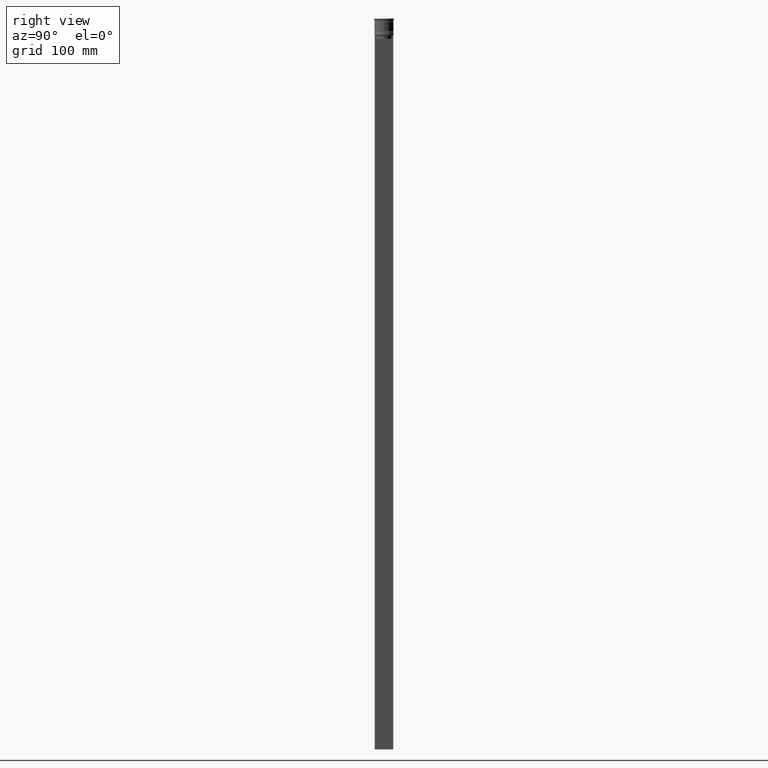
[diagram: clean part render]
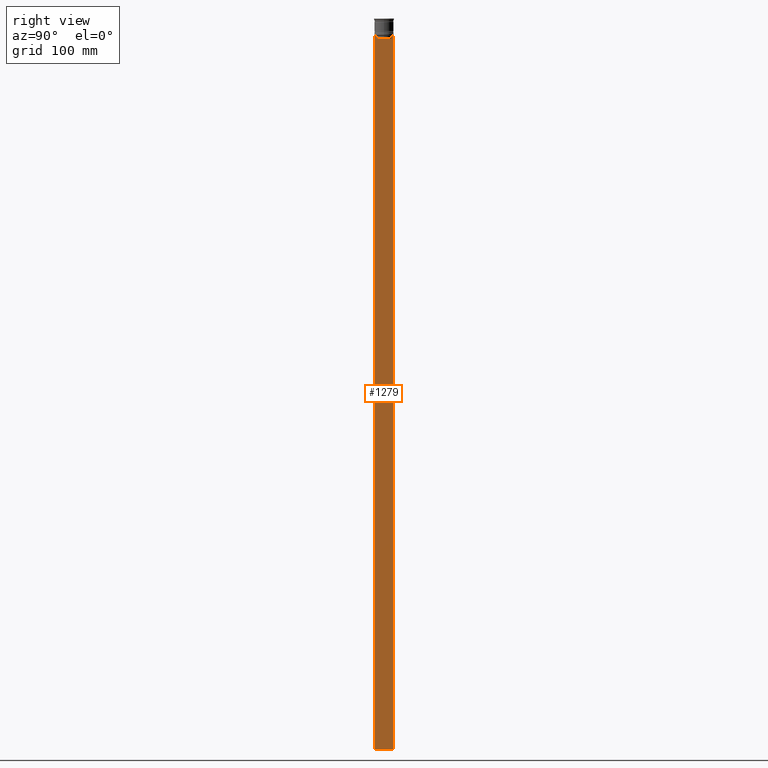
[diagram: same view with one face highlighted and labeled with its STEP entity id]
A machine part, right view. The second image highlights one B-rep face of the part: STEP entity #1279.
In plain terms, the highlighted planar face has unit normal (-1, 0, 0).
Its self-contained STEP definition (entity closure, byte-faithful):
#64 = DIRECTION ( 'NONE',  ( -0.000000000000000000, -0.000000000000000000, 1.000000000000000000 ) ) ;
#91 = VECTOR ( 'NONE', #1791, 1000.000000000000000 ) ;
#103 = CARTESIAN_POINT ( 'NONE',  ( 0.5000000000000001110, -6.380438856379708312, -17.00000000000000000 ) ) ;
#106 = VERTEX_POINT ( 'NONE', #1213 ) ;
#110 = CARTESIAN_POINT ( 'NONE',  ( 0.5000000000000001110, -7.749999999999999112, -14.00000000000000178 ) ) ;
#118 = LINE ( 'NONE', #1969, #2388 ) ;
#124 = EDGE_CURVE ( 'NONE', #2125, #307, #1019, .T. ) ;
#128 = ORIENTED_EDGE ( 'NONE', *, *, #1764, .T. ) ;
#199 = VECTOR ( 'NONE', #2129, 1000.000000000000000 ) ;
#236 = EDGE_CURVE ( 'NONE', #2189, #2233, #967, .T. ) ;
#239 = VERTEX_POINT ( 'NONE', #1712 ) ;
#307 = VERTEX_POINT ( 'NONE', #2237 ) ;
#325 = LINE ( 'NONE', #2380, #91 ) ;
#470 = CARTESIAN_POINT ( 'NONE',  ( 0.5000000000000001110, -7.749999999999999112, -614.0000000000000000 ) ) ;
#485 = EDGE_CURVE ( 'NONE', #307, #106, #1570, .T. ) ;
#515 = CARTESIAN_POINT ( 'NONE',  ( 0.5000000000000001110, -6.881860213634098500, -14.00000000000000178 ) ) ;
#517 = LINE ( 'NONE', #1239, #2384 ) ;
#520 = LINE ( 'NONE', #1702, #1526 ) ;
#533 = VERTEX_POINT ( 'NONE', #987 ) ;
#534 = CARTESIAN_POINT ( 'NONE',  ( 0.5000000000000001110, -6.714736947305993908, -14.16668390685738821 ) ) ;
#548 = ORIENTED_EDGE ( 'NONE', *, *, #124, .T. ) ;
#550 = VECTOR ( 'NONE', #1064, 1000.000000000000000 ) ;
#598 = CARTESIAN_POINT ( 'NONE',  ( 0.5000000000000001110, -7.749999999999999112, 1.532224567009066840 ) ) ;
#603 = CARTESIAN_POINT ( 'NONE',  ( 0.5000000000000001110, 6.380438856379708312, -17.00000000000000000 ) ) ;
#632 = AXIS2_PLACEMENT_3D ( 'NONE', #598, #2049, #1111 ) ;
#673 = LINE ( 'NONE', #470, #550 ) ;
#704 = CARTESIAN_POINT ( 'NONE',  ( 0.5000000000000001110, -6.380438856379708312, -14.50000000000000000 ) ) ;
#716 = ORIENTED_EDGE ( 'NONE', *, *, #1718, .T. ) ;
#718 = VECTOR ( 'NONE', #1740, 1000.000000000000000 ) ;
#808 = CARTESIAN_POINT ( 'NONE',  ( 0.5000000000000001110, -6.881860213634098500, -14.00000000000000178 ) ) ;
#850 = EDGE_CURVE ( 'NONE', #2125, #864, #325, .T. ) ;
#864 = VERTEX_POINT ( 'NONE', #1653 ) ;
#899 = EDGE_CURVE ( 'NONE', #1597, #533, #517, .T. ) ;
#944 = ORIENTED_EDGE ( 'NONE', *, *, #485, .T. ) ;
#952 = B_SPLINE_CURVE_WITH_KNOTS ( 'NONE', 3,
 ( #1631, #2184, #534, #515 ),
 .UNSPECIFIED., .F., .F.,
 ( 4, 4 ),
 ( 0.02996184199614751464, 0.03067452609193705923 ),
 .UNSPECIFIED. ) ;
#967 = LINE ( 'NONE', #2207, #1077 ) ;
#987 = CARTESIAN_POINT ( 'NONE',  ( 0.5000000000000001110, -7.749999999999999112, -14.00000000000000178 ) ) ;
#1019 = LINE ( 'NONE', #110, #199 ) ;
#1054 = ORIENTED_EDGE ( 'NONE', *, *, #1644, .T. ) ;
#1064 = DIRECTION ( 'NONE',  ( 0.000000000000000000, 1.000000000000000000, 0.000000000000000000 ) ) ;
#1077 = VECTOR ( 'NONE', #64, 1000.000000000000000 ) ;
#1097 = PLANE ( 'NONE',  #632 ) ;
#1102 = ORIENTED_EDGE ( 'NONE', *, *, #2231, .T. ) ;
#1111 = DIRECTION ( 'NONE',  ( 0.000000000000000000, 0.000000000000000000, 1.000000000000000000 ) ) ;
#1213 = CARTESIAN_POINT ( 'NONE',  ( 0.5000000000000001110, 6.380438856379708312, -14.50000000000000000 ) ) ;
#1239 = CARTESIAN_POINT ( 'NONE',  ( 0.5000000000000001110, -7.749999999999999112, -14.00000000000000178 ) ) ;
#1240 = VERTEX_POINT ( 'NONE', #603 ) ;
#1243 = CARTESIAN_POINT ( 'NONE',  ( 0.5000000000000001110, 6.714736947114692711, -14.16668390704818847 ) ) ;
#1279 = ADVANCED_FACE ( 'NONE', ( #1460 ), #1097, .F. ) ;
#1331 = LINE ( 'NONE', #2094, #718 ) ;
#1339 = ORIENTED_EDGE ( 'NONE', *, *, #236, .T. ) ;
#1376 = CARTESIAN_POINT ( 'NONE',  ( 0.5000000000000001110, 7.750000000000002665, -14.00000000000000178 ) ) ;
#1434 = CARTESIAN_POINT ( 'NONE',  ( 0.5000000000000001110, 6.380438856379708312, -14.50000000000000000 ) ) ;
#1460 = FACE_OUTER_BOUND ( 'NONE', #1643, .T. ) ;
#1524 = ORIENTED_EDGE ( 'NONE', *, *, #899, .T. ) ;
#1526 = VECTOR ( 'NONE', #2196, 1000.000000000000000 ) ;
#1570 = B_SPLINE_CURVE_WITH_KNOTS ( 'NONE', 3,
 ( #1622, #1243, #2377, #1434 ),
 .UNSPECIFIED., .F., .F.,
 ( 4, 4 ),
 ( 0.01172465562756038263, 0.01243276816391822651 ),
 .UNSPECIFIED. ) ;
#1597 = VERTEX_POINT ( 'NONE', #808 ) ;
#1622 = CARTESIAN_POINT ( 'NONE',  ( 0.5000000000000001110, 6.881860213634098500, -14.00000000000000178 ) ) ;
#1631 = CARTESIAN_POINT ( 'NONE',  ( 0.5000000000000001110, -6.380438856379708312, -14.50000000000000000 ) ) ;
#1643 = EDGE_LOOP ( 'NONE', ( #548, #944, #1054, #128, #1339, #1102, #1524, #1703, #716, #2064 ) ) ;
#1644 = EDGE_CURVE ( 'NONE', #106, #1240, #118, .T. ) ;
#1653 = CARTESIAN_POINT ( 'NONE',  ( 0.5000000000000001110, 7.750000000000002665, -614.0000000000000000 ) ) ;
#1702 = CARTESIAN_POINT ( 'NONE',  ( 0.5000000000000001110, 6.399999999999999467, -17.00000000000000000 ) ) ;
#1703 = ORIENTED_EDGE ( 'NONE', *, *, #2056, .T. ) ;
#1712 = CARTESIAN_POINT ( 'NONE',  ( 0.5000000000000001110, -7.749999999999999112, -614.0000000000000000 ) ) ;
#1718 = EDGE_CURVE ( 'NONE', #239, #864, #673, .T. ) ;
#1740 = DIRECTION ( 'NONE',  ( 0.000000000000000000, 0.000000000000000000, -1.000000000000000000 ) ) ;
#1764 = EDGE_CURVE ( 'NONE', #1240, #2189, #520, .T. ) ;
#1791 = DIRECTION ( 'NONE',  ( 0.000000000000000000, 0.000000000000000000, -1.000000000000000000 ) ) ;
#1813 = DIRECTION ( 'NONE',  ( 0.000000000000000000, -1.000000000000000000, 0.000000000000000000 ) ) ;
#1969 = CARTESIAN_POINT ( 'NONE',  ( 0.5000000000000001110, 6.380438856379708312, 0.000000000000000000 ) ) ;
#2049 = DIRECTION ( 'NONE',  ( -1.000000000000000000, 0.000000000000000000, 0.000000000000000000 ) ) ;
#2056 = EDGE_CURVE ( 'NONE', #533, #239, #1331, .T. ) ;
#2064 = ORIENTED_EDGE ( 'NONE', *, *, #850, .F. ) ;
#2094 = CARTESIAN_POINT ( 'NONE',  ( 0.5000000000000001110, -7.749999999999999112, 1.532224567009066840 ) ) ;
#2125 = VERTEX_POINT ( 'NONE', #1376 ) ;
#2129 = DIRECTION ( 'NONE',  ( 0.000000000000000000, -1.000000000000000000, 0.000000000000000000 ) ) ;
#2184 = CARTESIAN_POINT ( 'NONE',  ( 0.5000000000000001110, -6.547597841511247019, -14.33335192438652150 ) ) ;
#2189 = VERTEX_POINT ( 'NONE', #103 ) ;
#2196 = DIRECTION ( 'NONE',  ( 0.000000000000000000, -1.000000000000000000, 0.000000000000000000 ) ) ;
#2207 = CARTESIAN_POINT ( 'NONE',  ( 0.5000000000000001110, -6.380438856379708312, 0.000000000000000000 ) ) ;
#2231 = EDGE_CURVE ( 'NONE', #2233, #1597, #952, .T. ) ;
#2233 = VERTEX_POINT ( 'NONE', #704 ) ;
#2237 = CARTESIAN_POINT ( 'NONE',  ( 0.5000000000000001110, 6.881860213634098500, -14.00000000000000178 ) ) ;
#2365 = DIRECTION ( 'NONE',  ( 0.000000000000000000, 0.000000000000000000, -1.000000000000000000 ) ) ;
#2377 = CARTESIAN_POINT ( 'NONE',  ( 0.5000000000000001110, 6.547597841304911626, -14.33335192459222718 ) ) ;
#2380 = CARTESIAN_POINT ( 'NONE',  ( 0.5000000000000001110, 7.750000000000002665, 1.532224567009066840 ) ) ;
#2384 = VECTOR ( 'NONE', #1813, 1000.000000000000000 ) ;
#2388 = VECTOR ( 'NONE', #2365, 1000.000000000000000 ) ;